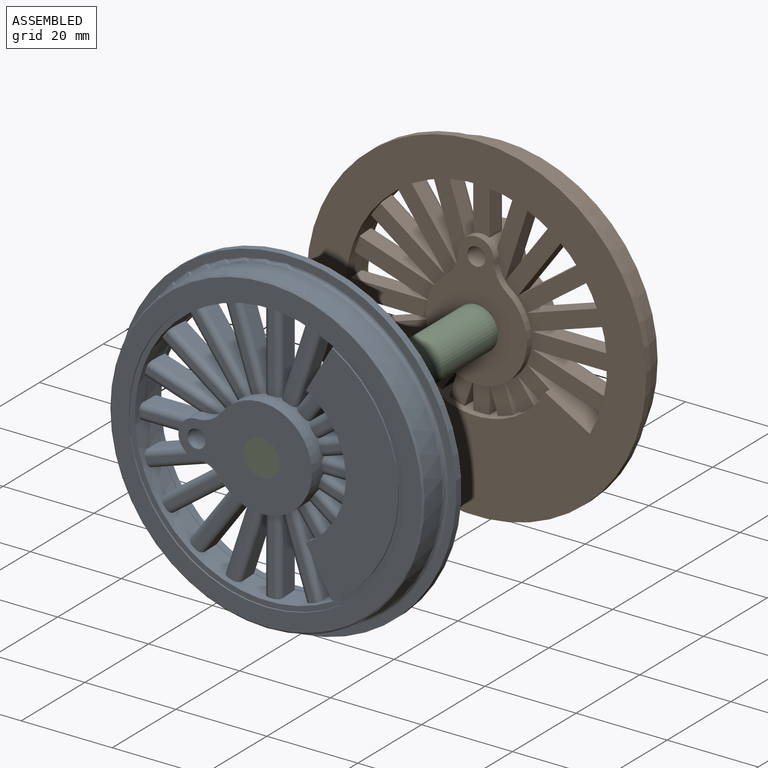
[diagram: assembled view]
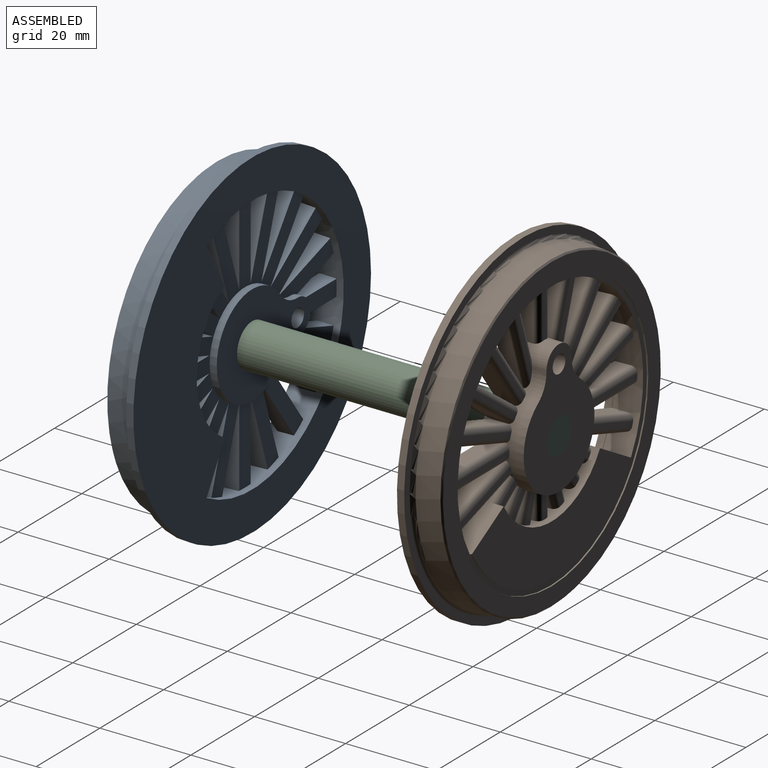
[diagram: assembled view, second angle]
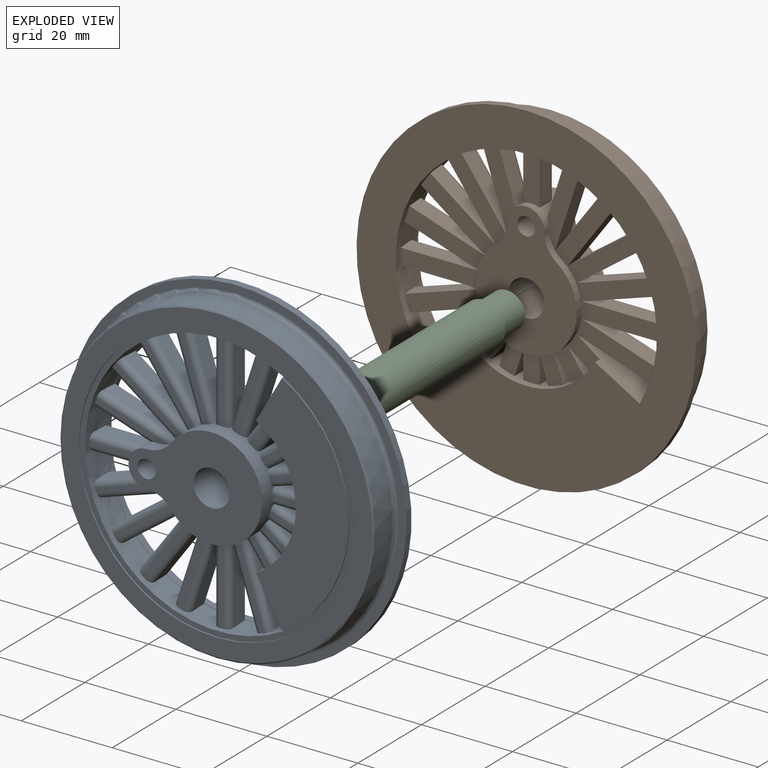
[diagram: exploded view]
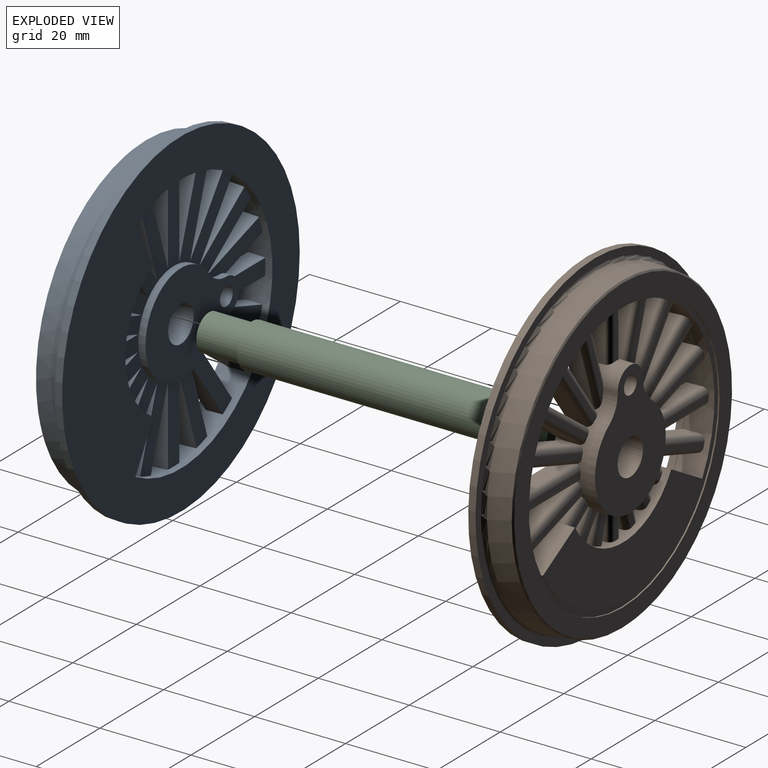
[diagram: exploded view, second angle]
ASSEMBLY  parts=3 mates=2
PART A: 143 faces, bbox 9.5x78.3x78.3 mm
  f0: cone r=28.74mm half-angle=3deg, axis (1,0,0), area 520.6mm2, adj f17,f40,f41,f42,f45,f46,f47,f48
  f1: plane 50.25x20.29mm, normal (1,0,0), area 561.5mm2, adj f137,f138,f139,f140
  f2: plane 57.49x41.69mm, normal (-1,0,0), area 785mm2, adj f18,f26,f27,f28,f29,f30,f31,f32
  f3: cylinder r=1.27mm len=6.52mm, axis (0,0.31,-0.95), area 12.6mm2, adj f4,f24,f29,f132,f138
  f4: cylinder r=1.27mm len=6.45mm, axis (0,0,1), area 12.6mm2, adj f3,f22,f28,f132,f138
  f5: cylinder r=1.27mm len=6.52mm, axis (0,-0.31,-0.95), area 12.6mm2, adj f6,f25,f39,f132,f138
  f6: cylinder r=1.27mm len=5.96mm, axis (0,0.59,0.81), area 12.6mm2, adj f5,f19,f38,f132,f138
  f7: cylinder r=1.27mm len=5.96mm, axis (0,0.81,0.59), area 12.6mm2, adj f8,f20,f36,f132,f138
  f8: cylinder r=1.27mm len=5.96mm, axis (0,-0.59,-0.81), area 12.6mm2, adj f7,f19,f37,f132,f138
  f9: cylinder r=1.27mm len=5.96mm, axis (0,-0.81,-0.59), area 12.6mm2, adj f20,f35,f49,f132,f138
  f10: cylinder r=1.27mm len=5.96mm, axis (0,-0.81,0.59), area 12.6mm2, adj f21,f34,f68,f132,f138
  f11: cylinder r=1.27mm len=5.96mm, axis (0,-0.59,0.81), area 12.6mm2, adj f12,f23,f32,f132,f138
  f12: cylinder r=1.27mm len=5.96mm, axis (0,0.81,-0.59), area 12.6mm2, adj f11,f21,f33,f132,f138
  f13: cylinder r=1.27mm len=6.52mm, axis (0,-0.31,0.95), area 12.6mm2, adj f14,f24,f30,f132,f138
  f14: cylinder r=1.27mm len=5.96mm, axis (0,0.59,-0.81), area 12.6mm2, adj f13,f23,f31,f132,f138
  f15: cylinder r=1.27mm len=6.45mm, axis (0,0,-1), area 12.6mm2, adj f16,f22,f27,f132,f138
  f16: cylinder r=1.27mm len=6.52mm, axis (0,0.31,0.95), area 12.6mm2, adj f15,f25,f26,f132,f138
  f17: plane 3.77x1.87mm, normal (1,0,0), area 0.3mm2, adj f0,f18,f100,f137
  f18: cylinder r=28.74mm len=57.49mm, axis (-1,0,0), area 190.8mm2, adj f2,f17,f43,f44,f69,f70,f71,f72
  f19: plane 5.71x4.54mm, normal (1,0,0), area 6.4mm2, adj f6,f8,f132,f138
  f20: plane 5.71x4.54mm, normal (1,0,0), area 6.4mm2, adj f7,f9,f132,f138
  f21: plane 5.71x4.54mm, normal (1,0,0), area 6.4mm2, adj f10,f12,f132,f138
  f22: plane 6.33x1.02mm, normal (1,0,0), area 6.4mm2, adj f4,f15,f132,f138
  f23: plane 5.71x4.54mm, normal (1,0,0), area 6.4mm2, adj f11,f14,f132,f138
  f24: plane 6.33x2.92mm, normal (1,0,0), area 6.4mm2, adj f3,f13,f132,f138
  f25: plane 6.33x2.92mm, normal (1,0,0), area 6.4mm2, adj f5,f16,f132,f138
  f26: plane 5.81x3.49mm, normal (0,-0.95,0.31), area 21.4mm2, adj f2,f16,f27,f138
  f27: plane 6.11x3.49mm, normal (0,1,0), area 21.4mm2, adj f2,f15,f26,f138
  f28: plane 6.11x3.49mm, normal (0,-1,0), area 21.4mm2, adj f2,f4,f29,f138
  f29: plane 5.81x3.49mm, normal (0,0.95,0.31), area 21.4mm2, adj f2,f3,f28,f138
  f30: plane 5.81x3.49mm, normal (0,-0.95,-0.31), area 21.4mm2, adj f2,f13,f31,f138
  f31: plane 4.95x3.59mm, normal (0,0.81,0.59), area 21.4mm2, adj f2,f14,f30,f138
  f32: plane 4.95x3.59mm, normal (0,-0.81,-0.59), area 21.4mm2, adj f2,f11,f33,f138
  f33: plane 4.95x3.59mm, normal (0,0.59,0.81), area 21.4mm2, adj f2,f12,f32,f138
  f34: plane 4.95x3.59mm, normal (0,-0.59,-0.81), area 21.4mm2, adj f2,f10,f100,f138
  f35: plane 4.95x3.59mm, normal (0,0.59,-0.81), area 21.4mm2, adj f2,f9,f121,f138
  f36: plane 4.95x3.59mm, normal (0,-0.59,0.81), area 21.4mm2, adj f2,f7,f37,f138
  f37: plane 4.95x3.59mm, normal (0,0.81,-0.59), area 21.4mm2, adj f2,f8,f36,f138
  f38: plane 4.95x3.59mm, normal (0,-0.81,0.59), area 21.4mm2, adj f2,f6,f39,f138
  f39: plane 5.81x3.49mm, normal (0,0.95,-0.31), area 21.4mm2, adj f2,f5,f38,f138
  f40: plane 15.14x11.36mm, normal (1,0,0), area 18.2mm2, adj f0,f56,f123,f128,f132
  f41: plane 15.97x5.5mm, normal (1,0,0), area 15.9mm2, adj f0,f122,f124,f128
  f42: plane 15.97x5.5mm, normal (1,0,0), area 15.9mm2, adj f0,f125,f127,f133
  f43: plane 17.53x7.13mm, normal (-1,0,0), area 53.4mm2, adj f18,f48,f111,f128,f129
  f44: plane 17.53x7.13mm, normal (-1,0,0), area 53.4mm2, adj f18,f45,f110,f129,f133
  f45: plane 11.79x3.83mm, normal (0,0.95,-0.31), area 43mm2, adj f0,f44,f76,f125,f129
  f46: plane 11.12x3.49mm, normal (0,-1,0), area 38.5mm2, adj f0,f59,f76,f99,f129
  f47: plane 11.12x3.49mm, normal (0,1,0), area 38.5mm2, adj f0,f58,f75,f99,f129
  f48: plane 11.79x3.83mm, normal (0,-0.95,-0.31), area 43mm2, adj f0,f43,f75,f124,f129
  f49: cylinder r=1.27mm len=17.6mm, axis (0,0.95,0.31), area 35.8mm2, adj f0,f9,f89,f121,f132
  f50: cylinder r=1.27mm len=18.1mm, axis (0,1,0), area 35.8mm2, adj f0,f51,f90,f119,f132
  f51: cylinder r=1.27mm len=17.6mm, axis (0,-0.95,-0.31), area 35.8mm2, adj f0,f50,f89,f120,f132
  f52: cylinder r=1.27mm len=17.6mm, axis (0,0.95,-0.31), area 35.8mm2, adj f0,f53,f91,f117,f132
  f53: cylinder r=1.27mm len=18.1mm, axis (0,-1,0), area 35.8mm2, adj f0,f52,f90,f118,f132
  f54: cylinder r=1.27mm len=15.39mm, axis (0,0.81,-0.59), area 35.8mm2, adj f0,f55,f92,f115,f132
  f55: cylinder r=1.27mm len=17.6mm, axis (0,-0.95,0.31), area 35.8mm2, adj f0,f54,f91,f116,f132
  f56: cylinder r=1.27mm len=15.39mm, axis (0,0.59,-0.81), area 35.8mm2, adj f0,f40,f57,f113,f132
  f57: cylinder r=1.27mm len=15.39mm, axis (0,-0.81,0.59), area 35.8mm2, adj f0,f56,f92,f114,f132
  f58: cylinder r=1.27mm len=11.24mm, axis (0,0,-1), area 21.9mm2, adj f0,f47,f93,f129
  f59: cylinder r=1.27mm len=11.24mm, axis (0,0,1), area 21.9mm2, adj f0,f46,f93,f129
  f60: cylinder r=1.27mm len=15.39mm, axis (0,-0.81,-0.59), area 35.8mm2, adj f0,f61,f95,f107,f132
  f61: cylinder r=1.27mm len=15.39mm, axis (0,0.59,0.81), area 35.8mm2, adj f0,f60,f94,f108,f132
  f62: cylinder r=1.27mm len=17.6mm, axis (0,-0.95,-0.31), area 35.8mm2, adj f0,f63,f96,f105,f132
  f63: cylinder r=1.27mm len=15.39mm, axis (0,0.81,0.59), area 35.8mm2, adj f0,f62,f95,f106,f132
  f64: cylinder r=1.27mm len=18.1mm, axis (0,-1,0), area 35.8mm2, adj f0,f65,f97,f103,f132
  f65: cylinder r=1.27mm len=17.6mm, axis (0,0.95,0.31), area 35.8mm2, adj f0,f64,f96,f104,f132
  f66: cylinder r=1.27mm len=17.6mm, axis (0,-0.95,0.31), area 35.8mm2, adj f0,f67,f98,f101,f132
  f67: cylinder r=1.27mm len=18.1mm, axis (0,1,0), area 35.8mm2, adj f0,f66,f97,f102,f132
  f68: cylinder r=1.27mm len=17.6mm, axis (0,0.95,-0.31), area 35.8mm2, adj f0,f10,f98,f100,f132
  f69: plane 3.77x1.87mm, normal (1,0,0), area 0.3mm2, adj f0,f18,f121,f139
  f70: plane 5.42x0.94mm, normal (1,0,0), area 0.5mm2, adj f0,f18,f119,f120
  f71: plane 5.42x0.94mm, normal (1,0,0), area 0.5mm2, adj f0,f18,f117,f118
  f72: plane 4.92x2.56mm, normal (1,0,0), area 0.5mm2, adj f0,f18,f115,f116
  f73: plane 3.93x3.93mm, normal (1,0,0), area 0.5mm2, adj f0,f18,f113,f114
  f74: plane 4.92x2.56mm, normal (1,0,0), area 0.5mm2, adj f0,f18,f111,f112
  f75: plane 5.42x0.94mm, normal (1,0,0), area 0.5mm2, adj f0,f18,f47,f48
  f76: plane 5.42x0.94mm, normal (1,0,0), area 0.5mm2, adj f0,f18,f45,f46
  f77: plane 4.92x2.56mm, normal (1,0,0), area 0.5mm2, adj f0,f18,f109,f110
  f78: plane 3.93x3.93mm, normal (1,0,0), area 0.5mm2, adj f0,f18,f107,f108
  f79: plane 4.92x2.56mm, normal (1,0,0), area 0.5mm2, adj f0,f18,f105,f106
  f80: plane 5.42x0.94mm, normal (1,0,0), area 0.5mm2, adj f0,f18,f103,f104
  f81: plane 5.42x0.94mm, normal (1,0,0), area 0.5mm2, adj f0,f18,f101,f102
  f82: cylinder r=37.31mm len=74.61mm, axis (-1,0,0), area 372.1mm2, adj f83,f84
  f83: plane 74.61x74.61mm, normal (1,0,0), area 392.2mm2, adj f82,f87
  f84: plane 74.61x74.61mm, normal (-1,0,0), area 2325.6mm2, adj f18,f82,f137,f138,f139
  f85: cone r=34.92mm half-angle=3deg, axis (-1,0,0), area 1152mm2, adj f87,f88
  f86: plane 68.38x68.38mm, normal (1,0,0), area 790.4mm2, adj f88,f142
  f87: torus R=35.59mm, axis (1,0,0), area 265.4mm2, adj f83,f85
  f88: cone r=34.19mm half-angle=46.5deg, axis (-1,0,0), area 99.4mm2, adj f85,f86
  f89: plane 17.41x6.52mm, normal (1,0,0), area 18.3mm2, adj f0,f49,f51,f132
  f90: plane 17.98x1.02mm, normal (1,0,0), area 18.3mm2, adj f0,f50,f53,f132
  f91: plane 17.41x6.52mm, normal (1,0,0), area 18.3mm2, adj f0,f52,f55,f132
  f92: plane 15.14x11.39mm, normal (1,0,0), area 18.3mm2, adj f0,f54,f57,f132
  f93: plane 10.85x1.02mm, normal (1,0,0), area 11mm2, adj f0,f58,f59,f129
  f94: plane 15.14x11.36mm, normal (1,0,0), area 18.2mm2, adj f0,f61,f126,f132,f133
  f95: plane 15.14x11.39mm, normal (1,0,0), area 18.3mm2, adj f0,f60,f63,f132
  f96: plane 17.41x6.52mm, normal (1,0,0), area 18.3mm2, adj f0,f62,f65,f132
  f97: plane 17.98x1.02mm, normal (1,0,0), area 18.3mm2, adj f0,f64,f67,f132
  f98: plane 17.41x6.52mm, normal (1,0,0), area 18.3mm2, adj f0,f66,f68,f132
  f99: plane 10.91x3.56mm, normal (-1,0,0), area 37.7mm2, adj f18,f46,f47,f129
  f100: plane 16.86x5.48mm, normal (0,0.31,0.95), area 61.6mm2, adj f0,f2,f17,f34,f68
  f101: plane 16.86x5.48mm, normal (0,-0.31,-0.95), area 61.6mm2, adj f0,f2,f66,f81,f102
  f102: plane 17.73x3.49mm, normal (0,0,1), area 61.6mm2, adj f0,f2,f67,f81,f101
  f103: plane 17.73x3.49mm, normal (0,0,-1), area 61.6mm2, adj f0,f2,f64,f80,f104
  f104: plane 16.86x5.48mm, normal (0,-0.31,0.95), area 61.6mm2, adj f0,f2,f65,f80,f103
  f105: plane 16.86x5.48mm, normal (0,0.31,-0.95), area 61.6mm2, adj f0,f2,f62,f79,f106
  f106: plane 14.34x10.42mm, normal (0,-0.59,0.81), area 61.6mm2, adj f0,f2,f63,f79,f105
  f107: plane 14.34x10.42mm, normal (0,0.59,-0.81), area 61.6mm2, adj f0,f2,f60,f78,f108
  f108: plane 14.34x10.42mm, normal (0,-0.81,0.59), area 61.6mm2, adj f0,f2,f61,f78,f107
  f109: plane 14.21x10.33mm, normal (0,0.81,-0.59), area 61mm2, adj f0,f2,f77,f126,f133
  f110: plane 16.68x5.42mm, normal (0,-0.95,0.31), area 60.9mm2, adj f0,f44,f77,f127,f133
  f111: plane 16.68x5.42mm, normal (0,0.95,0.31), area 60.9mm2, adj f0,f43,f74,f122,f128
  f112: plane 14.21x10.33mm, normal (0,-0.81,-0.59), area 61mm2, adj f0,f2,f74,f123,f128
  f113: plane 14.34x10.42mm, normal (0,0.81,0.59), area 61.6mm2, adj f0,f2,f56,f73,f114
  f114: plane 14.34x10.42mm, normal (0,-0.59,-0.81), area 61.6mm2, adj f0,f2,f57,f73,f113
  f115: plane 14.34x10.42mm, normal (0,0.59,0.81), area 61.6mm2, adj f0,f2,f54,f72,f116
  f116: plane 16.86x5.48mm, normal (0,-0.31,-0.95), area 61.6mm2, adj f0,f2,f55,f72,f115
  f117: plane 16.86x5.48mm, normal (0,0.31,0.95), area 61.6mm2, adj f0,f2,f52,f71,f118
  f118: plane 17.73x3.49mm, normal (0,0,-1), area 61.6mm2, adj f0,f2,f53,f71,f117
  f119: plane 17.73x3.49mm, normal (0,0,1), area 61.6mm2, adj f0,f2,f50,f70,f120
  f120: plane 16.86x5.48mm, normal (0,0.31,-0.95), area 61.6mm2, adj f0,f2,f51,f70,f119
  f121: plane 16.86x5.48mm, normal (0,-0.31,0.95), area 61.6mm2, adj f0,f2,f35,f49,f69
  f122: cylinder r=1.27mm len=17.19mm, axis (0,0.31,-0.95), area 34.3mm2, adj f0,f41,f111,f128
  f123: cylinder r=1.27mm len=15.26mm, axis (0,-0.59,0.81), area 35.4mm2, adj f0,f40,f112,f128
  f124: cylinder r=1.27mm len=14.33mm, axis (0,-0.31,0.95), area 26mm2, adj f0,f41,f48,f128,f129
  f125: cylinder r=1.27mm len=14.33mm, axis (0,-0.31,-0.95), area 26mm2, adj f0,f42,f45,f129,f133
  f126: cylinder r=1.27mm len=15.26mm, axis (0,-0.59,-0.81), area 35.4mm2, adj f0,f94,f109,f133
  f127: cylinder r=1.27mm len=17.19mm, axis (0,0.31,0.95), area 34.3mm2, adj f0,f42,f110,f133
  f128: cylinder r=6.35mm len=9.53mm, axis (-1,0,0), area 30.1mm2, adj f2,f40,f41,f43,f111,f112,f122,f123
  f129: cylinder r=3.97mm len=9.53mm, axis (-1,0,0), area 83.7mm2, adj f43,f44,f45,f46,f47,f48,f58,f59
  f130: cylinder r=1.99mm len=9.53mm, axis (-1,0,0), area 118.8mm2, adj f135,f136
  f131: cylinder r=11.11mm len=22.23mm, axis (-1,0,0), area 88.5mm2, adj f2,f128,f133,f136
  f132: cylinder r=11.11mm len=22.23mm, axis (-1,0,0), area 186.9mm2, adj f3,f4,f5,f6,f7,f8,f9,f10
  f133: cylinder r=6.35mm len=9.53mm, axis (-1,0,0), area 30.1mm2, adj f2,f42,f44,f94,f109,f110,f125,f126
  f134: cylinder r=3.97mm len=9.53mm, axis (-1,0,0), area 237.5mm2, adj f135,f136
  f135: plane 29.37x22.23mm, normal (1,0,0), area 381.9mm2, adj f128,f129,f130,f132,f133,f134
  f136: plane 29.37x22.23mm, normal (-1,0,0), area 381.9mm2, adj f128,f129,f130,f131,f133,f134
  f137: plane 10.16x7.94mm, normal (0,-0.5,-0.87), area 91.3mm2, adj f0,f1,f17,f18,f84,f138,f140,f141
  f138: cylinder r=17.43mm len=30.25mm, axis (-1,0,0), area 176.9mm2, adj f1,f2,f3,f4,f5,f6,f7,f8
  f139: plane 10.16x7.94mm, normal (0,0.5,-0.87), area 91.3mm2, adj f0,f1,f18,f69,f84,f138,f140,f141
  f140: cylinder r=28.95mm len=50.25mm, axis (-1,0,0), area 19.3mm2, adj f1,f137,f139,f141
  f141: plane 60.58x60.58mm, normal (1,0,0), area 225.8mm2, adj f0,f137,f139,f140,f142
  f142: cylinder r=30.29mm len=60.58mm, axis (-1,0,0), area 60.4mm2, adj f86,f141
PART B: same geometry as A
PART C: 7 faces, bbox 9.5x77x9.5 mm
  f0: cylinder r=3.97mm len=7.94mm, axis (0,1,0), area 178.2mm2, adj f1,f3
  f1: plane 7.94x7.94mm, normal (0,1,0), area 49.5mm2, adj f0
  f2: cylinder r=4.76mm len=60.33mm, axis (0,-1,0), area 1805.1mm2, adj f3,f4
  f3: plane 9.53x9.53mm, normal (0,1,0), area 21.8mm2, adj f0,f2
  f4: plane 9.53x9.53mm, normal (0,-1,0), area 21.8mm2, adj f2,f6
  f5: plane 7.94x7.94mm, normal (0,-1,0), area 49.5mm2, adj f6
  f6: cylinder r=3.97mm len=9.53mm, axis (0,1,0), area 237.5mm2, adj f4,f5
PLACE A rot(axis=(-0.58,0.58,-0.58),120deg) t=(-0.5,-22.88,9.57)mm
PLACE B rot(axis=(0.71,0.71,0),180deg) t=(-0.5,35.06,9.57)mm
PLACE C t=(-0.5,-22.88,9.57)mm
MATE fastened A.f134 <-> C.f0  axis (0,-1,0) through (-0.5,-32.41,9.57)mm
MATE fastened B.f134 <-> C.f0  axis (0,-1,0) through (-0.5,44.59,9.57)mm
